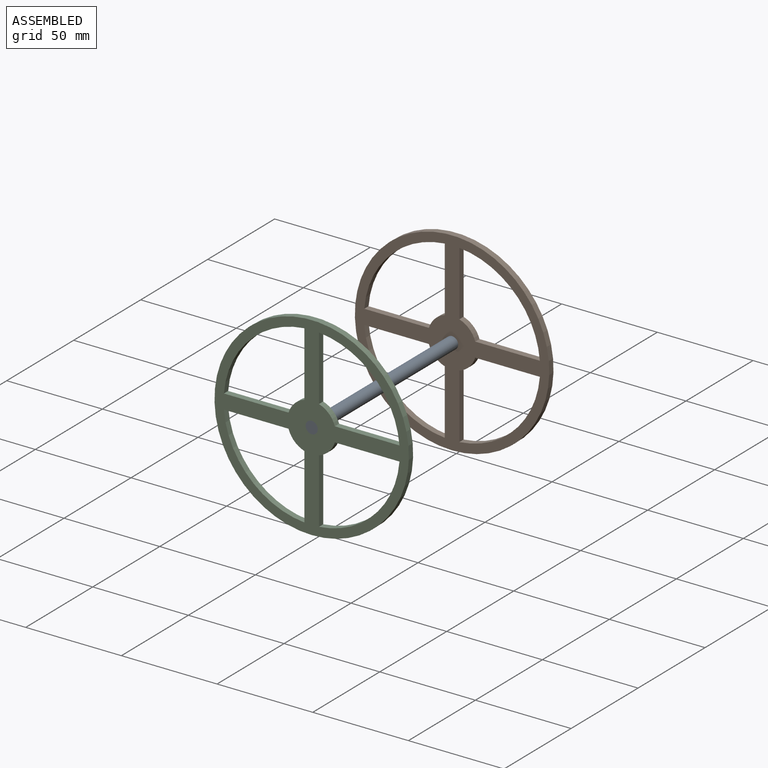
[diagram: assembled view]
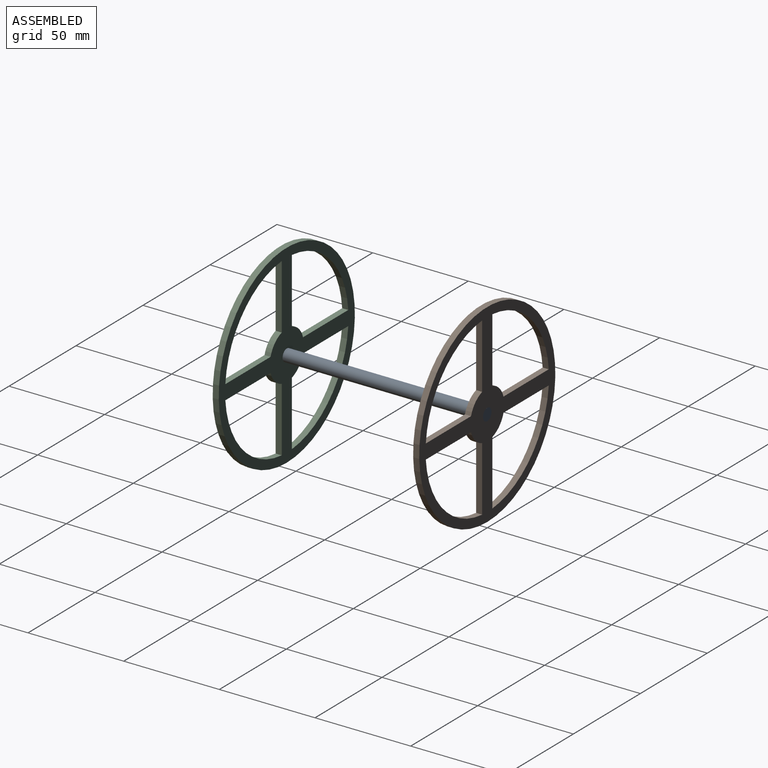
[diagram: assembled view, second angle]
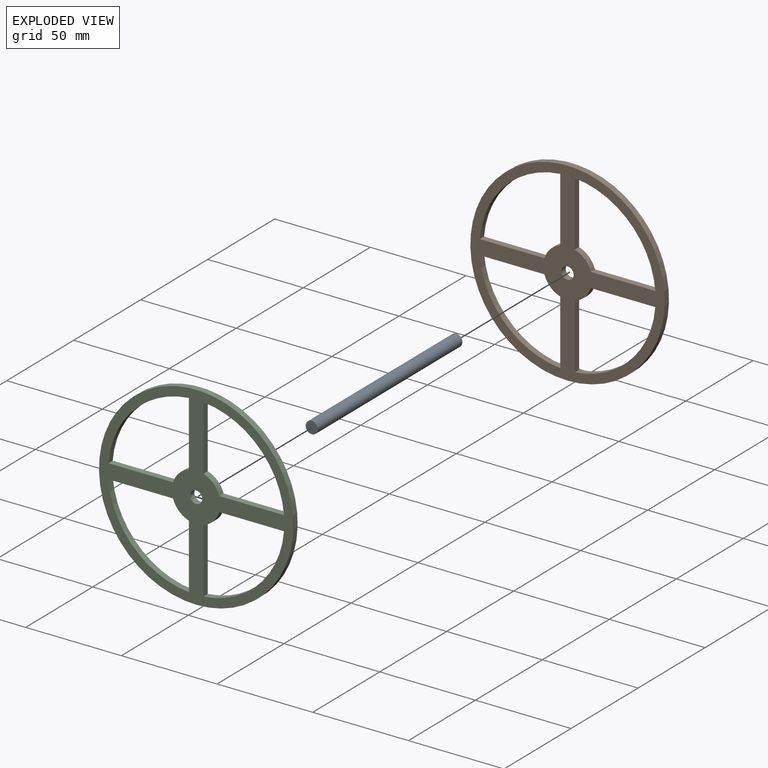
[diagram: exploded view]
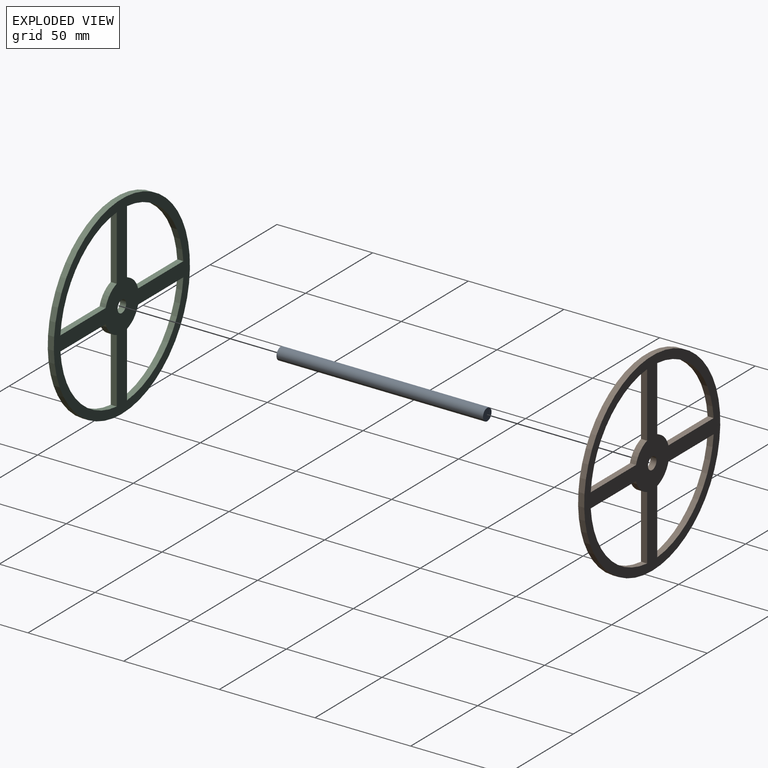
[diagram: exploded view, second angle]
ASSEMBLY  parts=3 mates=2
PART A: 3 faces, bbox 6.4x108x6.4 mm
  f0: cylinder r=3.17mm len=107.95mm, axis (0,1,0), area 2153.5mm2, adj f1,f2
  f1: plane 6.35x6.35mm, normal (0,-1,0), area 31.7mm2, adj f0
  f2: plane 6.35x6.35mm, normal (0,1,0), area 31.7mm2, adj f0
PART B: 20 faces, bbox 101.6x3.2x101.6 mm
  f0: plane 33.76x3.18mm, normal (1,0,0), area 107.2mm2, adj f1,f13,f18,f19
  f1: cylinder r=46.04mm len=42.07mm, axis (0,1,0), area 205.4mm2, adj f0,f2,f18,f19
  f2: plane 33.76x3.18mm, normal (0,0,1), area 107.2mm2, adj f1,f13,f18,f19
  f3: cylinder r=46.04mm len=42.07mm, axis (0,1,0), area 205.4mm2, adj f4,f14,f18,f19
  f4: plane 33.76x3.18mm, normal (-1,0,0), area 107.2mm2, adj f3,f5,f18,f19
  f5: cylinder r=12.7mm len=8.31mm, axis (0,1,0), area 38.8mm2, adj f4,f14,f18,f19
  f6: cylinder r=46.04mm len=42.07mm, axis (0,1,0), area 205.4mm2, adj f7,f15,f18,f19
  f7: plane 33.76x3.18mm, normal (0,0,-1), area 107.2mm2, adj f6,f8,f18,f19
  f8: cylinder r=12.7mm len=8.31mm, axis (0,1,0), area 38.8mm2, adj f7,f15,f18,f19
  f9: cylinder r=46.04mm len=42.07mm, axis (0,1,0), area 205.4mm2, adj f10,f16,f18,f19
  f10: plane 33.76x3.18mm, normal (1,0,0), area 107.2mm2, adj f9,f11,f18,f19
  f11: cylinder r=12.7mm len=8.31mm, axis (0,1,0), area 38.8mm2, adj f10,f16,f18,f19
  f12: cylinder r=50.8mm len=101.6mm, axis (0,1,0), area 1013.4mm2, adj f18,f19
  f13: cylinder r=12.7mm len=8.31mm, axis (0,1,0), area 38.8mm2, adj f0,f2,f18,f19
  f14: plane 33.76x3.18mm, normal (0,0,1), area 107.2mm2, adj f3,f5,f18,f19
  f15: plane 33.76x3.18mm, normal (-1,0,0), area 107.2mm2, adj f6,f8,f18,f19
  f16: plane 33.76x3.18mm, normal (0,0,-1), area 107.2mm2, adj f9,f11,f18,f19
  f17: cylinder r=3.17mm len=6.35mm, axis (0,1,0), area 63.3mm2, adj f18,f19
  f18: plane 101.6x101.6mm, normal (0,-1,0), area 2944.3mm2, adj f0,f1,f2,f3,f4,f5,f6,f7
  f19: plane 101.6x101.6mm, normal (0,1,0), area 2944.3mm2, adj f0,f1,f2,f3,f4,f5,f6,f7
PART C: same geometry as B
PLACE A at identity
PLACE B at identity
PLACE C t=(0,-104.78,0)mm
MATE fastened B.f17 <-> A.f0  axis (0,1,0) through (0,0,0)mm
MATE fastened A.f0 <-> C.f17  axis (0,-1,0) through (0,-107.95,0)mm
